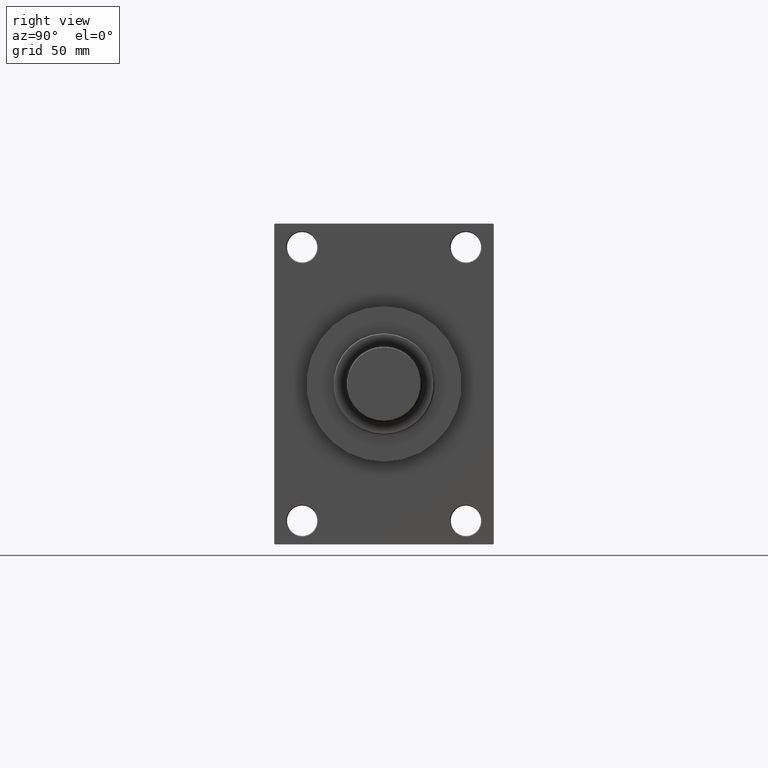
[diagram: clean part render]
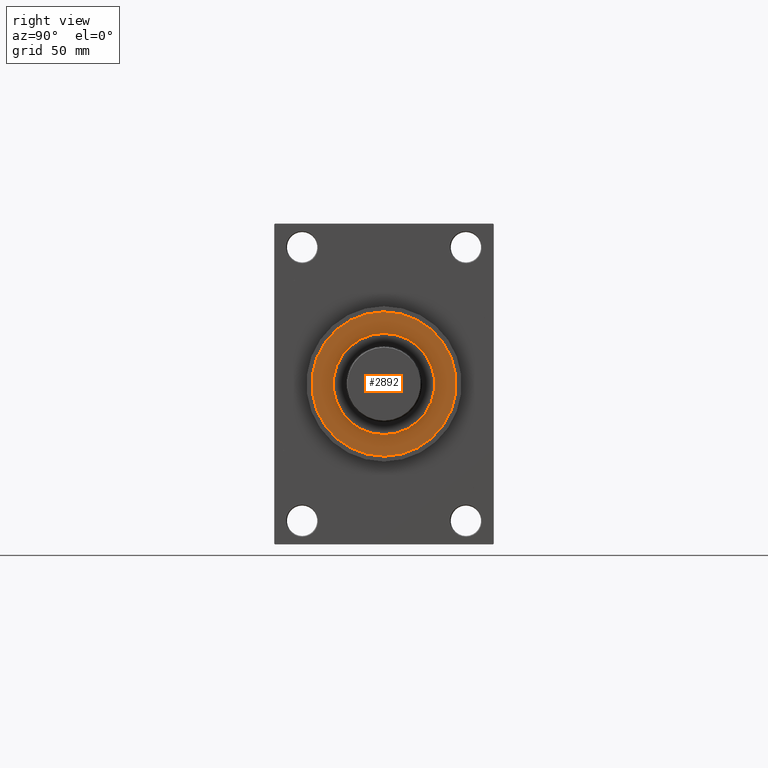
[diagram: same view with one face highlighted and labeled with its STEP entity id]
A machine part, right view. The second image highlights one B-rep face of the part: STEP entity #2892.
In plain terms, the highlighted planar face has unit normal (1, 0, 0).
Its self-contained STEP definition (entity closure, byte-faithful):
#352 = DIRECTION ( 'NONE',  ( 0.000000000000000000, 0.000000000000000000, 1.000000000000000000 ) ) ;
#2892 = ADVANCED_FACE ( 'NONE', ( #7668, #22497 ), #43926, .T. ) ;
#3965 = CARTESIAN_POINT ( 'NONE',  ( 0.000000000000000000, 0.000000000000000000, 43.25999999999999801 ) ) ;
#5314 = EDGE_CURVE ( 'NONE', #22941, #35309, #17632, .T. ) ;
#7192 = CARTESIAN_POINT ( 'NONE',  ( 0.000000000000000000, 0.000000000000000000, 43.25999999999999801 ) ) ;
#7515 = ORIENTED_EDGE ( 'NONE', *, *, #33071, .T. ) ;
#7668 = FACE_BOUND ( 'NONE', #34312, .T. ) ;
#8133 = CARTESIAN_POINT ( 'NONE',  ( 0.000000000000000000, 0.000000000000000000, 43.25999999999999801 ) ) ;
#9662 = EDGE_CURVE ( 'NONE', #22641, #28939, #40304, .T. ) ;
#12514 = CARTESIAN_POINT ( 'NONE',  ( 0.000000000000000000, 0.000000000000000000, 43.25999999999999801 ) ) ;
#12877 = AXIS2_PLACEMENT_3D ( 'NONE', #12514, #27346, #30521 ) ;
#14475 = DIRECTION ( 'NONE',  ( 1.000000000000000000, 0.000000000000000000, -0.000000000000000000 ) ) ;
#15120 = DIRECTION ( 'NONE',  ( 0.000000000000000000, 0.000000000000000000, 1.000000000000000000 ) ) ;
#15205 = CARTESIAN_POINT ( 'NONE',  ( 30.00000000000000000, 3.673940397442059178E-15, 43.25999999999999801 ) ) ;
#15222 = CARTESIAN_POINT ( 'NONE',  ( 0.000000000000000000, 0.000000000000000000, 43.25999999999999801 ) ) ;
#17632 = CIRCLE ( 'NONE', #25395, 30.00000000000000000 ) ;
#18892 = DIRECTION ( 'NONE',  ( 1.000000000000000000, 0.000000000000000000, 0.000000000000000000 ) ) ;
#22372 = CARTESIAN_POINT ( 'NONE',  ( -42.75000000000000000, 0.000000000000000000, 43.25999999999999801 ) ) ;
#22497 = FACE_OUTER_BOUND ( 'NONE', #34209, .T. ) ;
#22641 = VERTEX_POINT ( 'NONE', #46168 ) ;
#22756 = CIRCLE ( 'NONE', #44533, 30.00000000000000000 ) ;
#22941 = VERTEX_POINT ( 'NONE', #15205 ) ;
#23975 = EDGE_CURVE ( 'NONE', #35309, #22941, #22756, .T. ) ;
#24523 = AXIS2_PLACEMENT_3D ( 'NONE', #7192, #29084, #14475 ) ;
#25395 = AXIS2_PLACEMENT_3D ( 'NONE', #3965, #15120, #29964 ) ;
#25530 = AXIS2_PLACEMENT_3D ( 'NONE', #15222, #26655, #18892 ) ;
#26655 = DIRECTION ( 'NONE',  ( 0.000000000000000000, 0.000000000000000000, 1.000000000000000000 ) ) ;
#27346 = DIRECTION ( 'NONE',  ( 0.000000000000000000, 0.000000000000000000, 1.000000000000000000 ) ) ;
#28939 = VERTEX_POINT ( 'NONE', #22372 ) ;
#29084 = DIRECTION ( 'NONE',  ( 0.000000000000000000, 0.000000000000000000, 1.000000000000000000 ) ) ;
#29964 = DIRECTION ( 'NONE',  ( 1.000000000000000000, 0.000000000000000000, 0.000000000000000000 ) ) ;
#30521 = DIRECTION ( 'NONE',  ( 1.000000000000000000, 0.000000000000000000, 0.000000000000000000 ) ) ;
#33071 = EDGE_CURVE ( 'NONE', #28939, #22641, #33856, .T. ) ;
#33430 = ORIENTED_EDGE ( 'NONE', *, *, #9662, .T. ) ;
#33514 = ORIENTED_EDGE ( 'NONE', *, *, #5314, .F. ) ;
#33856 = CIRCLE ( 'NONE', #12877, 42.75000000000000000 ) ;
#34209 = EDGE_LOOP ( 'NONE', ( #7515, #33430 ) ) ;
#34312 = EDGE_LOOP ( 'NONE', ( #38770, #33514 ) ) ;
#34998 = CARTESIAN_POINT ( 'NONE',  ( -30.00000000000000000, 0.000000000000000000, 43.25999999999999801 ) ) ;
#35309 = VERTEX_POINT ( 'NONE', #34998 ) ;
#36845 = DIRECTION ( 'NONE',  ( 1.000000000000000000, 0.000000000000000000, 0.000000000000000000 ) ) ;
#38770 = ORIENTED_EDGE ( 'NONE', *, *, #23975, .F. ) ;
#40304 = CIRCLE ( 'NONE', #25530, 42.75000000000000000 ) ;
#43926 = PLANE ( 'NONE',  #24523 ) ;
#44533 = AXIS2_PLACEMENT_3D ( 'NONE', #8133, #352, #36845 ) ;
#46168 = CARTESIAN_POINT ( 'NONE',  ( 42.75000000000000000, 5.235365066354935472E-15, 43.25999999999999801 ) ) ;